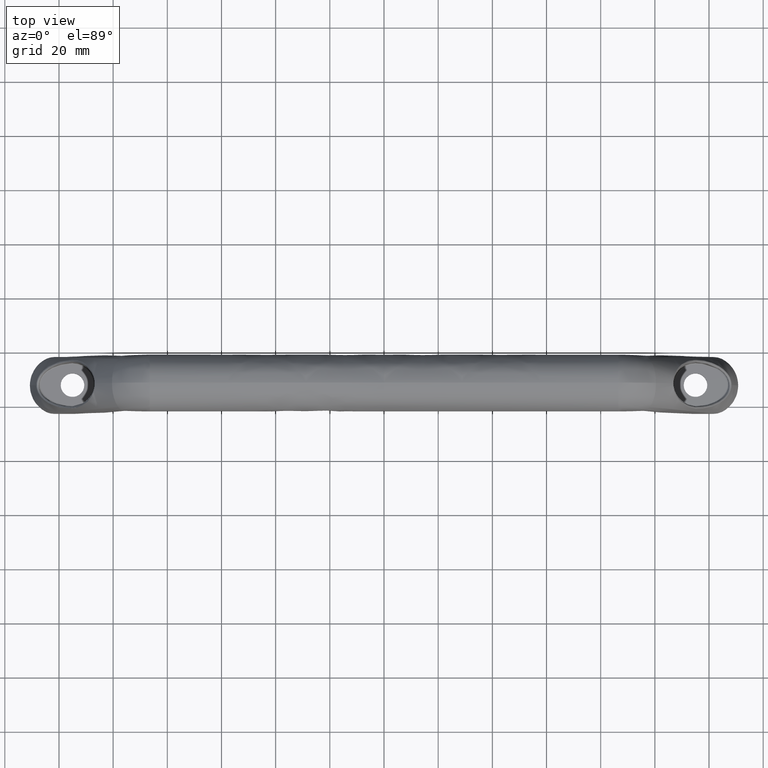
[diagram: clean part render]
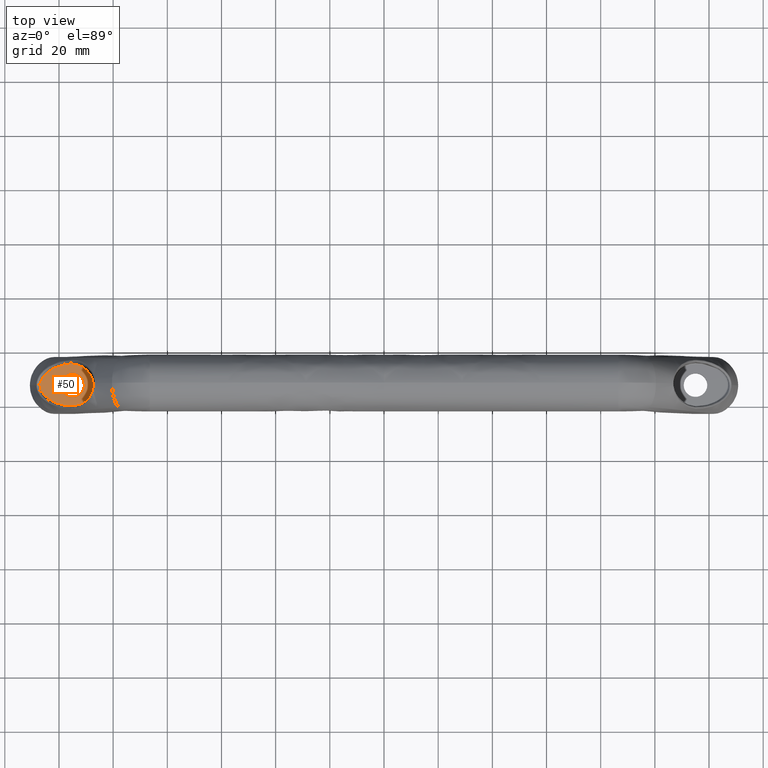
[diagram: same view with one face highlighted and labeled with its STEP entity id]
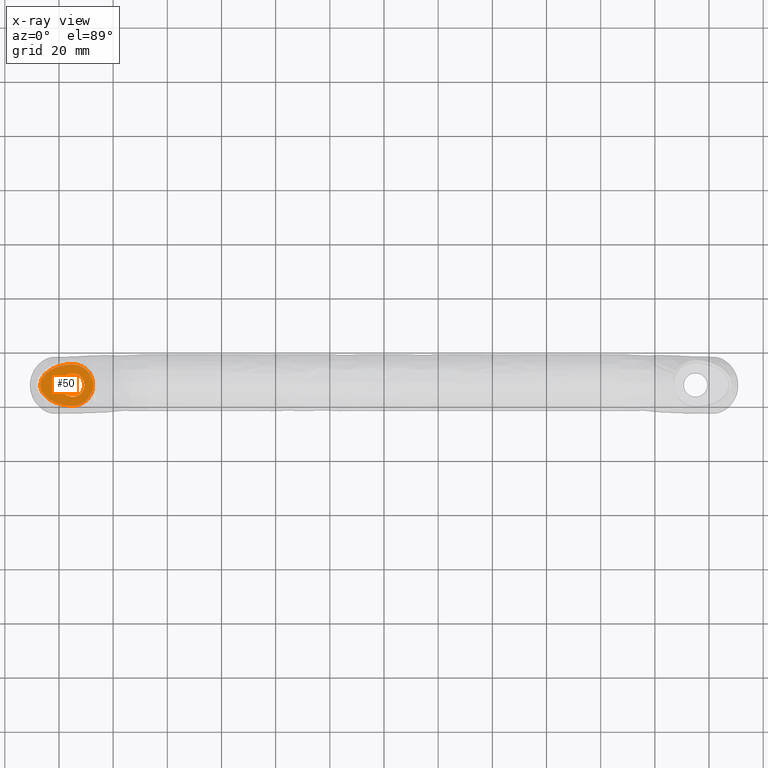
[diagram: x-ray of the same camera — body ghosted, the highlighted face saturated]
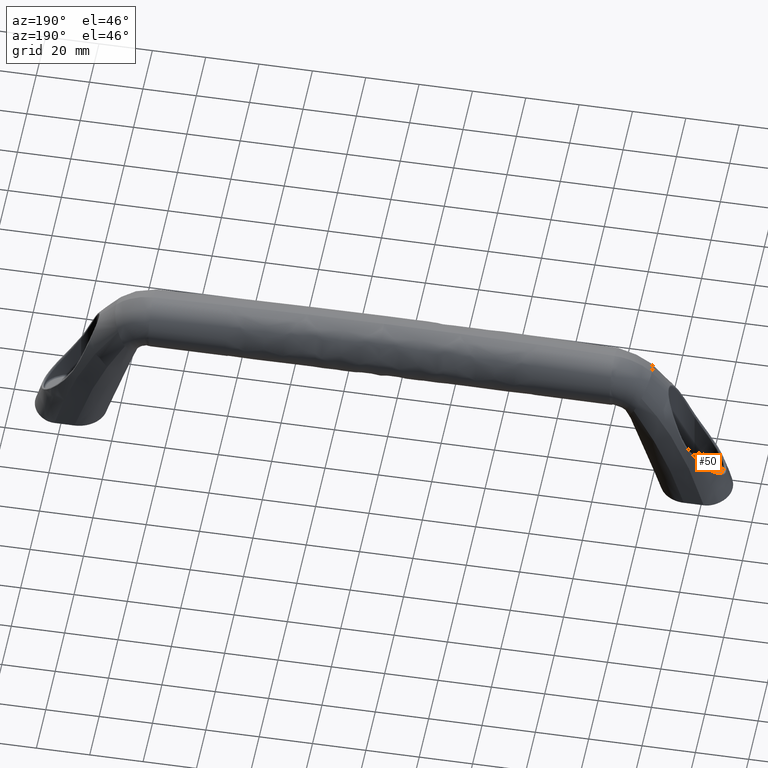
[diagram: same view with one face highlighted and labeled with its STEP entity id]
A machine part, top view. The second image highlights one B-rep face of the part: STEP entity #50.
The next image is the same camera in x-ray: the body ghosted, the highlighted face saturated — about 0% of this face is hidden behind the body in this view.
A second angle (auxiliary view) of the same face is appended — the face is thin or edge-on in the first view.
In plain terms, the highlighted planar face has unit normal (0, 0, 1).
Its self-contained STEP definition (entity closure, byte-faithful):
#50=ADVANCED_FACE('',(#206,#207),#205,.T.);
#205=PLANE('',#2113);
#206=FACE_OUTER_BOUND('',#2114,.T.);
#207=FACE_BOUND('',#2115,.T.);
#2110=CARTESIAN_POINT('',(-1.28801097174E+02,-2.11800000040E+01,-2.44999999950E+01));
#2111=DIRECTION('',(0.00000000000E+00,0.00000000000E+00,1.00000000000E+00));
#2112=DIRECTION('',(1.00000000000E+00,0.00000000000E+00,0.00000000000E+00));
#2113=AXIS2_PLACEMENT_3D('',#2110,#2111,#2112);
#2114=EDGE_LOOP('',(#7462,#7463));
#2115=EDGE_LOOP('',(#7464,#7465));
#7462=ORIENTED_EDGE('',*,*,#7749,.T.);
#7463=ORIENTED_EDGE('',*,*,#7742,.F.);
#7464=ORIENTED_EDGE('',*,*,#7750,.T.);
#7465=ORIENTED_EDGE('',*,*,#7751,.T.);
#7742=EDGE_CURVE('',#8085,#8092,#8093,.T.);
#7749=EDGE_CURVE('',#8085,#8092,#8140,.T.);
#7750=EDGE_CURVE('',#8146,#8147,#8148,.T.);
#7751=EDGE_CURVE('',#8147,#8146,#8154,.T.);
#8085=VERTEX_POINT('',#9305);
#8092=VERTEX_POINT('',#9310);
#8093=(BOUNDED_CURVE() B_SPLINE_CURVE(3,(#9311,#9312,#9313,#9314,#9315,#9316,#9317,#9318,#9319,#9320,#9321,#9322,#9323,#9324,#9325,#9326,#9327,#9328,#9329,#9330,#9331,#9332,#9333,#9334,#9335,#9336,#9337,#9338,#9339,#9340,#9341,#9342,#9343,#9344,#9345,#9346,#9347,#9348,#9349,#9350,#9351,#9352,#9353,#9354,#9355,#9356),.UNSPECIFIED.,.F.,.F.) B_SPLINE_CURVE_WITH_KNOTS((4,2,2,2,2,2,2,2,2,2,2,2,2,2,2,2,2,2,2,2,2,2,4),(-3.10014886935E+01,-2.90638956502E+01,-2.71263026068E+01,-2.51887095635E+01,-2.32511165202E+01,-2.22823199985E+01,-2.13135234768E+01,-2.03447269552E+01,-1.93759304334E+01,-1.84071339118E+01,-1.74383373901E+01,-1.64695408685E+01,-1.55007443468E+01,-1.45319478252E+01,-1.35631513034E+01,-1.25943547818E+01,-1.16255582601E+01,-9.68796521677E+00,-7.75037217343E+00,-6.78157565172E+00,-5.81277913010E+00,-3.87518608677E+00,0.00000000000E+00),.UNSPECIFIED.) CURVE() GEOMETRIC_REPRESENTATION_ITEM() RATIONAL_B_SPLINE_CURVE((1.00000000000E+00,1.00000000000E+00,1.00000000000E+00,1.00000000000E+00,1.00000000000E+00,1.00000000000E+00,1.00000000000E+00,1.00000000000E+00,1.00000000000E+00,1.00000000000E+00,1.00000000000E+00,1.00000000000E+00,1.00000000000E+00,1.00000000000E+00,1.00000000000E+00,1.00000000000E+00,1.00000000000E+00,1.00000000000E+00,1.00000000000E+00,1.00000000000E+00,1.00000000000E+00,1.00000000000E+00,1.00000000000E+00,1.00000000000E+00,1.00000000000E+00,1.00000000000E+00,1.00000000000E+00,1.00000000000E+00,1.00000000000E+00,1.00000000000E+00,1.00000000000E+00,1.00000000000E+00,1.00000000000E+00,1.00000000000E+00,1.00000000000E+00,1.00000000000E+00,1.00000000000E+00,1.00000000000E+00,1.00000000000E+00,1.00000000000E+00,1.00000000000E+00,1.00000000000E+00,1.00000000000E+00,1.00000000000E+00,1.00000000000E+00,1.00000000000E+00)) REPRESENTATION_ITEM('') );
#8140=CIRCLE('',#9390,7.65000000000E+00);
#8146=VERTEX_POINT('',#9391);
#8147=VERTEX_POINT('',#9392);
#8148=CIRCLE('',#9396,4.35000000000E+00);
#8154=CIRCLE('',#9400,4.35000000000E+00);
#9305=CARTESIAN_POINT('',(-1.15000000363E+02,-1.96500000040E+01,-2.44999999950E+01));
#9310=CARTESIAN_POINT('',(-1.15000000363E+02,-4.35000000398E+00,-2.44999999950E+01));
#9311=CARTESIAN_POINT('',(-1.15000000363E+02,-1.96500000040E+01,-2.44999999950E+01));
#9312=CARTESIAN_POINT('',(-1.15647961779E+02,-1.96500000040E+01,-2.44999999950E+01));
#9313=CARTESIAN_POINT('',(-1.16292772295E+02,-1.96156535036E+01,-2.44999999950E+01));
#9314=CARTESIAN_POINT('',(-1.17576024930E+02,-1.94775415571E+01,-2.44999999950E+01));
#9315=CARTESIAN_POINT('',(-1.18217426597E+02,-1.93730695244E+01,-2.44999999950E+01));
#9316=CARTESIAN_POINT('',(-1.19476602194E+02,-1.90920972102E+01,-2.44999999950E+01));
#9317=CARTESIAN_POINT('',(-1.20093809608E+02,-1.89162079340E+01,-2.44999999950E+01));
#9318=CARTESIAN_POINT('',(-1.21300913775E+02,-1.84863314459E+01,-2.44999999950E+01));
#9319=CARTESIAN_POINT('',(-1.21890889410E+02,-1.82325698036E+01,-2.44999999950E+01));
#9320=CARTESIAN_POINT('',(-1.22750814071E+02,-1.77803260683E+01,-2.44999999950E+01));
#9321=CARTESIAN_POINT('',(-1.23032818230E+02,-1.76175913802E+01,-2.44999999950E+01));
#9322=CARTESIAN_POINT('',(-1.23577298624E+02,-1.72710362153E+01,-2.44999999950E+01));
#9323=CARTESIAN_POINT('',(-1.23840989691E+02,-1.70866242183E+01,-2.44999999950E+01));
#9324=CARTESIAN_POINT('',(-1.24349244399E+02,-1.66928886079E+01,-2.44999999950E+01));
#9325=CARTESIAN_POINT('',(-1.24593827655E+02,-1.64835905394E+01,-2.44999999950E+01));
#9326=CARTESIAN_POINT('',(-1.25060693291E+02,-1.60359496720E+01,-2.44999999950E+01));
#9327=CARTESIAN_POINT('',(-1.25284060236E+02,-1.57960506452E+01,-2.44999999950E+01));
#9328=CARTESIAN_POINT('',(-1.25693126987E+02,-1.52942359038E+01,-2.44999999950E+01));
#9329=CARTESIAN_POINT('',(-1.25880026455E+02,-1.50314971741E+01,-2.44999999950E+01));
#9330=CARTESIAN_POINT('',(-1.26213292191E+02,-1.44788242206E+01,-2.44999999950E+01));
#9331=CARTESIAN_POINT('',(-1.26360708823E+02,-1.41862395534E+01,-2.44999999950E+01));
#9332=CARTESIAN_POINT('',(-1.26601159927E+02,-1.35815580552E+01,-2.44999999950E+01));
#9333=CARTESIAN_POINT('',(-1.26693775435E+02,-1.32718043234E+01,-2.44999999950E+01));
#9334=CARTESIAN_POINT('',(-1.26818985634E+02,-1.26361819540E+01,-2.44999999950E+01));
#9335=CARTESIAN_POINT('',(-1.26850997464E+02,-1.23073013944E+01,-2.44999999950E+01));
#9336=CARTESIAN_POINT('',(-1.26848954382E+02,-1.16618169061E+01,-2.44999999950E+01));
#9337=CARTESIAN_POINT('',(-1.26816038165E+02,-1.13422491146E+01,-2.44999999950E+01));
#9338=CARTESIAN_POINT('',(-1.26688653920E+02,-1.07092397361E+01,-2.44999999950E+01));
#9339=CARTESIAN_POINT('',(-1.26592724558E+02,-1.03935222527E+01,-2.44999999950E+01));
#9340=CARTESIAN_POINT('',(-1.26350922287E+02,-9.79314815450E+00,-2.44999999950E+01));
#9341=CARTESIAN_POINT('',(-1.26204886778E+02,-9.50542764540E+00,-2.44999999950E+01));
#9342=CARTESIAN_POINT('',(-1.25868806846E+02,-8.95181485612E+00,-2.44999999950E+01));
#9343=CARTESIAN_POINT('',(-1.25677537477E+02,-8.68492908494E+00,-2.44999999950E+01));
#9344=CARTESIAN_POINT('',(-1.25061758547E+02,-7.93487988795E+00,-2.44999999950E+01));
#9345=CARTESIAN_POINT('',(-1.24592109286E+02,-7.49341908689E+00,-2.44999999950E+01));
#9346=CARTESIAN_POINT('',(-1.23562738795E+02,-6.69971949476E+00,-2.44999999950E+01));
#9347=CARTESIAN_POINT('',(-1.23013994429E+02,-6.35676625051E+00,-2.44999999950E+01));
#9348=CARTESIAN_POINT('',(-1.22158823854E+02,-5.90903422373E+00,-2.44999999950E+01));
#9349=CARTESIAN_POINT('',(-1.21867888063E+02,-5.77076045581E+00,-2.44999999950E+01));
#9350=CARTESIAN_POINT('',(-1.21275197794E+02,-5.51440087207E+00,-2.44999999950E+01));
#9351=CARTESIAN_POINT('',(-1.20972393694E+02,-5.39596850625E+00,-2.44999999950E+01));
#9352=CARTESIAN_POINT('',(-1.20056909014E+02,-5.07217473872E+00,-2.44999999950E+01));
#9353=CARTESIAN_POINT('',(-1.19439294432E+02,-4.89833702177E+00,-2.44999999950E+01));
#9354=CARTESIAN_POINT('',(-1.17567761054E+02,-4.48454270366E+00,-2.44999999950E+01));
#9355=CARTESIAN_POINT('',(-1.16295552545E+02,-4.35000000398E+00,-2.44999999950E+01));
#9356=CARTESIAN_POINT('',(-1.15000000363E+02,-4.35000000398E+00,-2.44999999950E+01));
#9387=CARTESIAN_POINT('',(-1.15000000363E+02,-1.20000000040E+01,-2.44999999950E+01));
#9388=DIRECTION('',(3.01943428202E-29,4.64407016837E-16,1.00000000000E+00));
#9389=DIRECTION('',(-1.30156425350E-13,-1.00000000000E+00,4.64407016837E-16));
#9390=AXIS2_PLACEMENT_3D('',#9387,#9388,#9389);
#9391=CARTESIAN_POINT('',(-1.10650000000E+02,-1.20000000040E+01,-2.44999999950E+01));
#9392=CARTESIAN_POINT('',(-1.19350000000E+02,-1.20000000040E+01,-2.44999999950E+01));
#9393=CARTESIAN_POINT('',(-1.15000000000E+02,-1.20000000040E+01,-2.44999999950E+01));
#9394=DIRECTION('',(-8.16715788230E-16,1.06723948599E-29,-1.00000000000E+00));
#9395=DIRECTION('',(1.00000000000E+00,-4.55216962465E-14,-8.16715788230E-16));
#9396=AXIS2_PLACEMENT_3D('',#9393,#9394,#9395);
#9397=CARTESIAN_POINT('',(-1.15000000000E+02,-1.20000000040E+01,-2.44999999950E+01));
#9398=DIRECTION('',(-8.16715788230E-16,1.06723948599E-29,-1.00000000000E+00));
#9399=DIRECTION('',(1.00000000000E+00,-4.55216962465E-14,-8.16715788230E-16));
#9400=AXIS2_PLACEMENT_3D('',#9397,#9398,#9399);